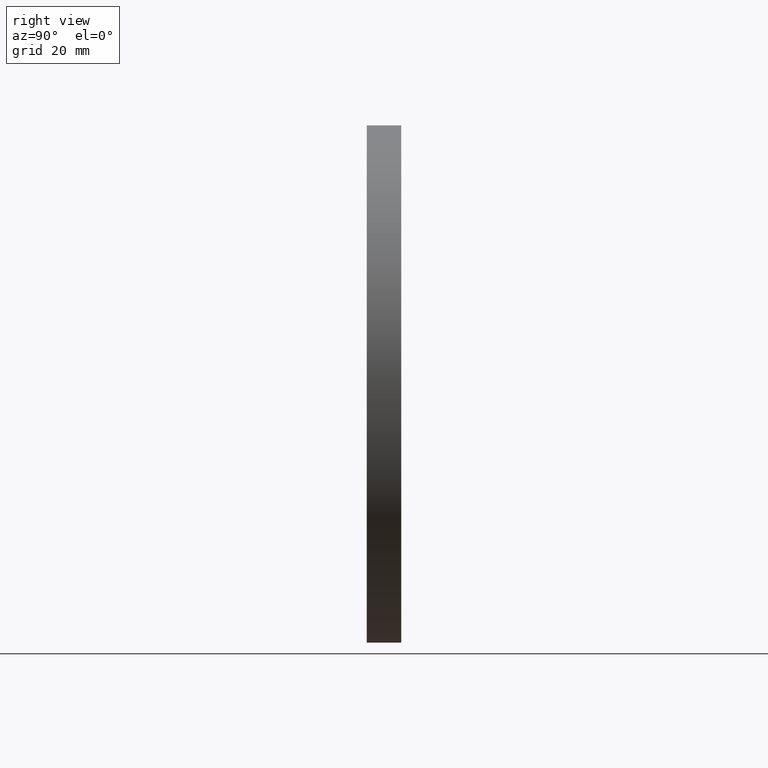
[diagram: clean part render]
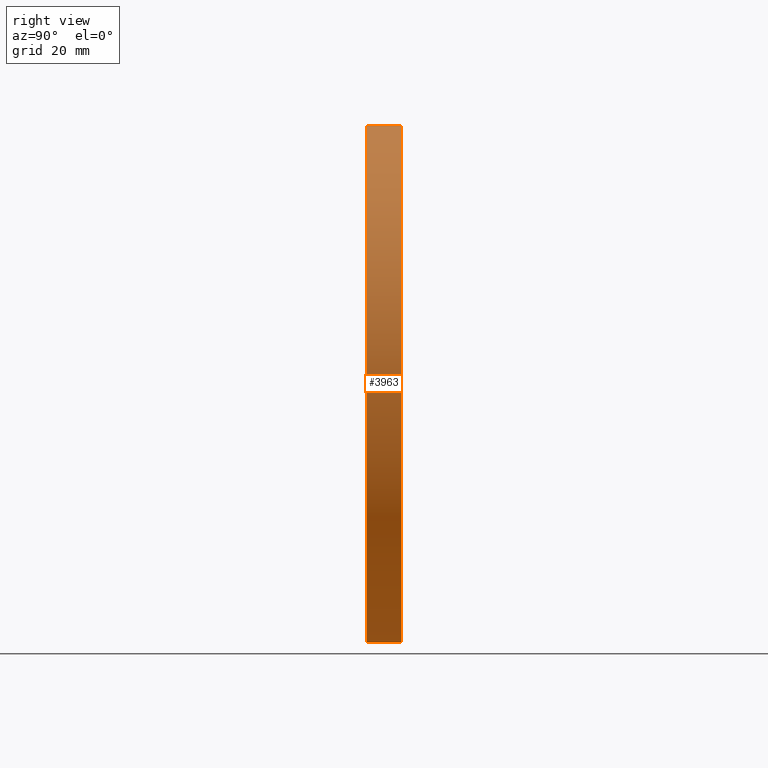
[diagram: same view with one face highlighted and labeled with its STEP entity id]
A machine part, right view. The second image highlights one B-rep face of the part: STEP entity #3963.
In plain terms, the highlighted cylindrical surface (partial cylindrical patch) has radius 60 mm, axis along (-0, -1, -0).
Its self-contained STEP definition (entity closure, byte-faithful):
#131 = DIRECTION ( 'NONE',  ( 0.0000000000000000000, 0.0000000000000000000, 1.000000000000000000 ) ) ;
#158 = ORIENTED_EDGE ( 'NONE', *, *, #2651, .F. ) ;
#1204 = EDGE_CURVE ( 'NONE', #2268, #2400, #11008, .T. ) ;
#1399 = VERTEX_POINT ( 'NONE', #9034 ) ;
#1415 = CARTESIAN_POINT ( 'NONE',  ( 7.347880794884118400E-015, 8.000000000000000000, 60.00000000000000000 ) ) ;
#1657 = EDGE_CURVE ( 'NONE', #1399, #2336, #4433, .T. ) ;
#1920 = AXIS2_PLACEMENT_3D ( 'NONE', #11398, #11241, #131 ) ;
#2268 = VERTEX_POINT ( 'NONE', #3257 ) ;
#2336 = VERTEX_POINT ( 'NONE', #9311 ) ;
#2344 = DIRECTION ( 'NONE',  ( -0.0000000000000000000, -1.000000000000000000, -0.0000000000000000000 ) ) ;
#2400 = VERTEX_POINT ( 'NONE', #10148 ) ;
#2651 = EDGE_CURVE ( 'NONE', #2336, #2400, #4138, .T. ) ;
#2836 = DIRECTION ( 'NONE',  ( 0.0000000000000000000, 0.0000000000000000000, -1.000000000000000000 ) ) ;
#3019 = EDGE_CURVE ( 'NONE', #1399, #2268, #5713, .T. ) ;
#3257 = CARTESIAN_POINT ( 'NONE',  ( 7.347880794884118400E-015, 0.0000000000000000000, 60.00000000000000000 ) ) ;
#3475 = DIRECTION ( 'NONE',  ( -0.0000000000000000000, -1.000000000000000000, -0.0000000000000000000 ) ) ;
#3963 = ADVANCED_FACE ( 'NONE', ( #8947 ), #6740, .T. ) ;
#4138 = LINE ( 'NONE', #6226, #7947 ) ;
#4178 = CARTESIAN_POINT ( 'NONE',  ( 0.0000000000000000000, 0.0000000000000000000, 0.0000000000000000000 ) ) ;
#4433 = CIRCLE ( 'NONE', #1920, 60.00000000000000000 ) ;
#5474 = ORIENTED_EDGE ( 'NONE', *, *, #3019, .T. ) ;
#5713 = LINE ( 'NONE', #1415, #11153 ) ;
#6063 = ORIENTED_EDGE ( 'NONE', *, *, #1657, .F. ) ;
#6080 = DIRECTION ( 'NONE',  ( 0.0000000000000000000, 1.000000000000000000, 0.0000000000000000000 ) ) ;
#6226 = CARTESIAN_POINT ( 'NONE',  ( 0.0000000000000000000, 8.000000000000000000, -60.00000000000000000 ) ) ;
#6654 = DIRECTION ( 'NONE',  ( -0.0000000000000000000, -1.000000000000000000, -0.0000000000000000000 ) ) ;
#6740 = CYLINDRICAL_SURFACE ( 'NONE', #9000, 60.00000000000000000 ) ;
#6781 = AXIS2_PLACEMENT_3D ( 'NONE', #4178, #6080, #11653 ) ;
#7947 = VECTOR ( 'NONE', #3475, 1000.000000000000000 ) ;
#8490 = EDGE_LOOP ( 'NONE', ( #6063, #5474, #10635, #158 ) ) ;
#8947 = FACE_OUTER_BOUND ( 'NONE', #8490, .T. ) ;
#9000 = AXIS2_PLACEMENT_3D ( 'NONE', #9528, #6654, #2836 ) ;
#9034 = CARTESIAN_POINT ( 'NONE',  ( 7.347880794884118400E-015, 8.000000000000000000, 60.00000000000000000 ) ) ;
#9311 = CARTESIAN_POINT ( 'NONE',  ( 0.0000000000000000000, 8.000000000000000000, -60.00000000000000000 ) ) ;
#9528 = CARTESIAN_POINT ( 'NONE',  ( 0.0000000000000000000, 8.000000000000000000, 0.0000000000000000000 ) ) ;
#10148 = CARTESIAN_POINT ( 'NONE',  ( 0.0000000000000000000, 0.0000000000000000000, -60.00000000000000000 ) ) ;
#10635 = ORIENTED_EDGE ( 'NONE', *, *, #1204, .T. ) ;
#11008 = CIRCLE ( 'NONE', #6781, 60.00000000000000000 ) ;
#11153 = VECTOR ( 'NONE', #2344, 1000.000000000000000 ) ;
#11241 = DIRECTION ( 'NONE',  ( 0.0000000000000000000, 1.000000000000000000, 0.0000000000000000000 ) ) ;
#11398 = CARTESIAN_POINT ( 'NONE',  ( 0.0000000000000000000, 8.000000000000000000, 0.0000000000000000000 ) ) ;
#11653 = DIRECTION ( 'NONE',  ( 0.0000000000000000000, 0.0000000000000000000, 1.000000000000000000 ) ) ;